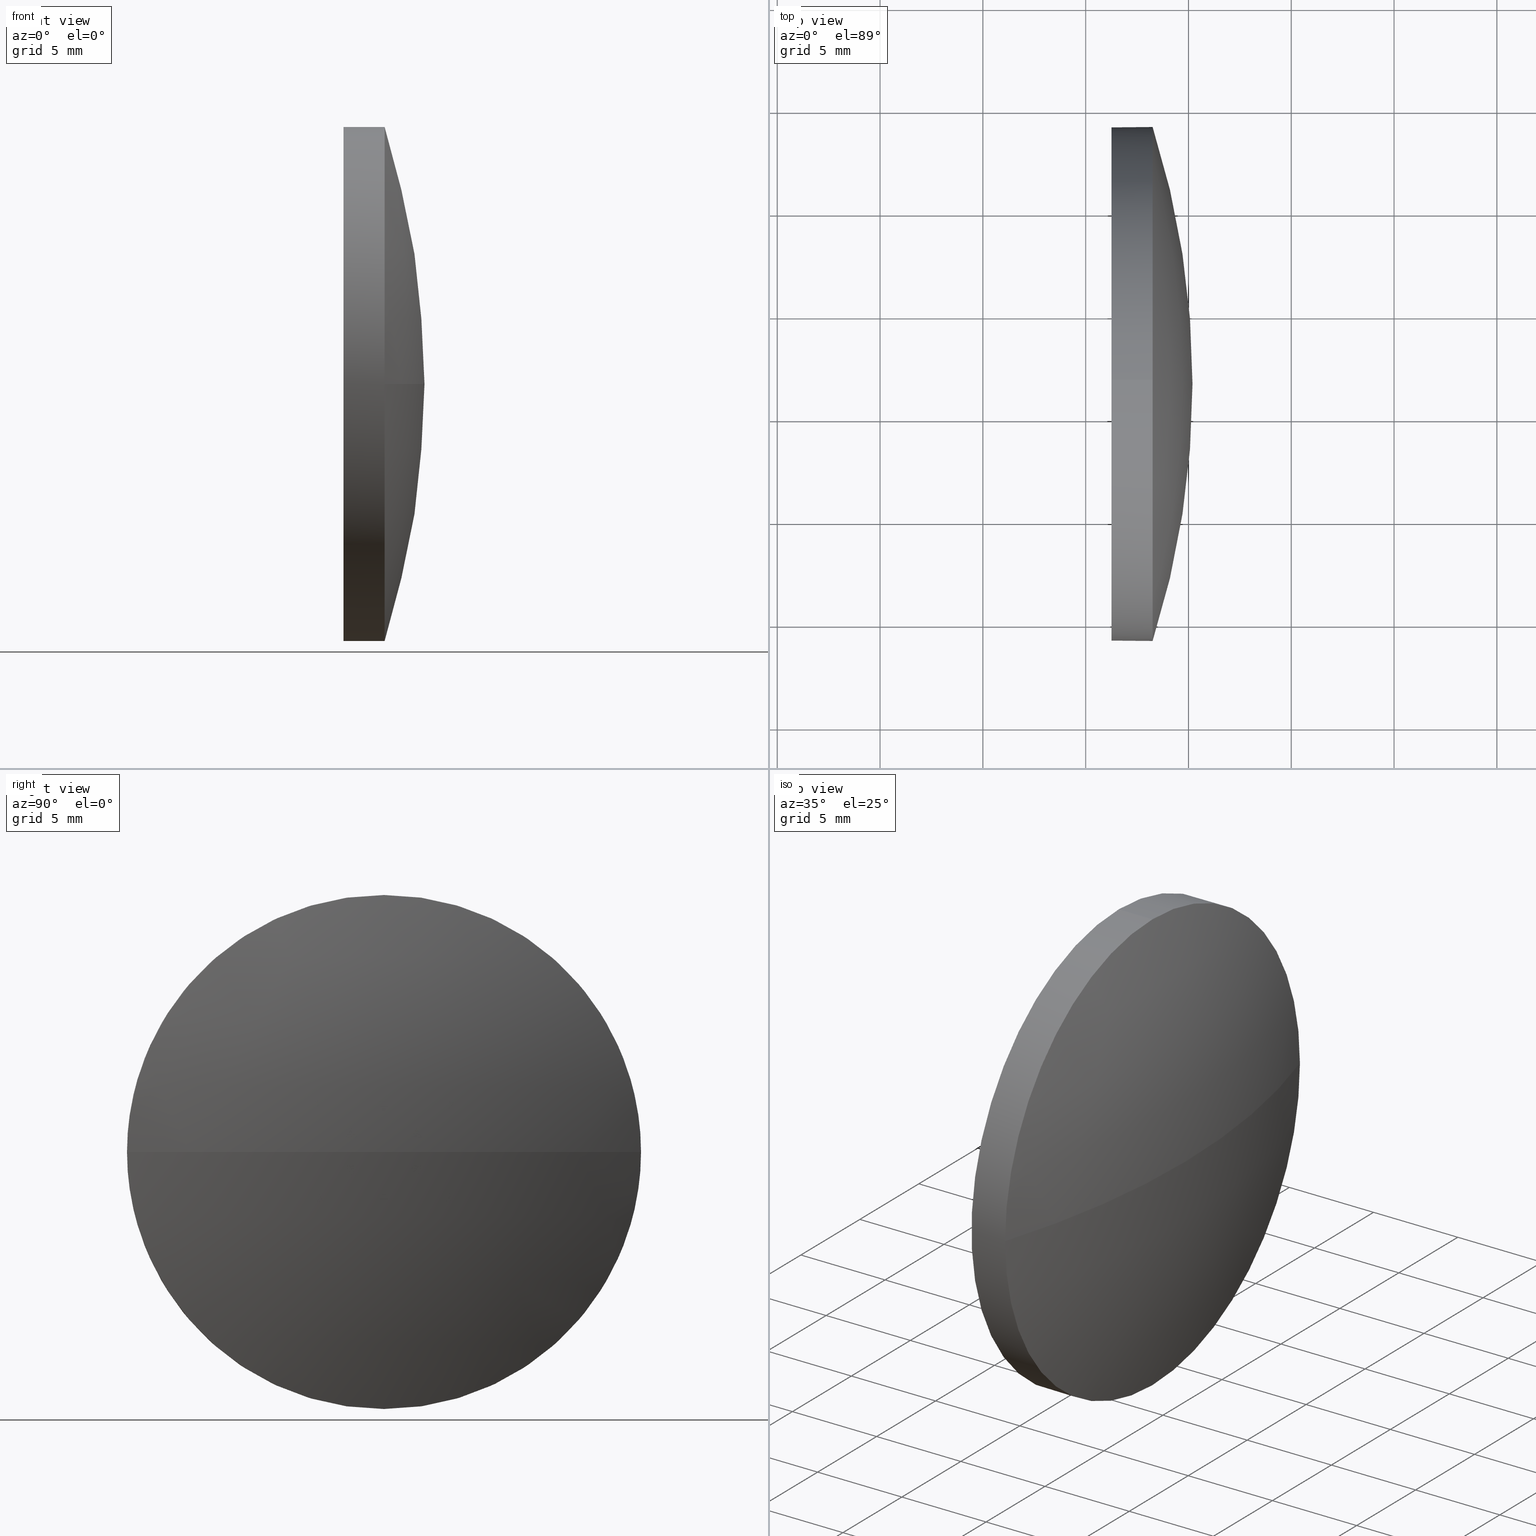
[diagram: canonical four-view strip — front | top / right | iso, engineering-drawing reading convention]
A machine part, canonical four-view strip (front | top / right | iso — engineering-drawing reading convention). The complete STEP part file that produces these views, byte-faithful:
ISO-10303-21;
HEADER;
FILE_DESCRIPTION (( 'STEP AP214' ),
    '1' );
FILE_NAME ('100129.STEP',
    '2019-05-14T09:21:58',
    ( '' ),
    ( '' ),
    'SwSTEP 2.0',
    'SolidWorks 2016',
    '' );
FILE_SCHEMA (( 'AUTOMOTIVE_DESIGN' ));
ENDSEC;

DATA;
#1 = PRODUCT ( '100129', '100129', '', ( #120 ) ) ;
#2 = LINE ( 'NONE', #151, #123 ) ;
#3 = ORIENTED_EDGE ( 'NONE', *, *, #97, .F. ) ;
#4 = LINE ( 'NONE', #117, #96 ) ;
#5 = EDGE_LOOP ( 'NONE', ( #61, #19, #116, #17 ) ) ;
#6 = ORIENTED_EDGE ( 'NONE', *, *, #22, .F. ) ;
#7 = ADVANCED_BREP_SHAPE_REPRESENTATION ( '100129', ( #119, #33 ), #14 ) ;
#8 =( NAMED_UNIT ( * ) PLANE_ANGLE_UNIT ( ) SI_UNIT ( $, .RADIAN. ) );
#9 = DIRECTION ( 'NONE',  ( 0.0000000000000000000, -1.000000000000000000, -1.224646799147353000E-016 ) ) ;
#10 = CARTESIAN_POINT ( 'NONE',  ( 848.2559013236141300, 251.6067305368113700, 0.0000000000000000000 ) ) ;
#11 = FACE_OUTER_BOUND ( 'NONE', #16, .T. ) ;
#12 = VERTEX_POINT ( 'NONE', #49 ) ;
#13 =( NAMED_UNIT ( * ) SI_UNIT ( $, .STERADIAN. ) SOLID_ANGLE_UNIT ( ) );
#14 =( GEOMETRIC_REPRESENTATION_CONTEXT ( 3 ) GLOBAL_UNCERTAINTY_ASSIGNED_CONTEXT ( ( #186 ) ) GLOBAL_UNIT_ASSIGNED_CONTEXT ( ( #26, #89, #13 ) ) REPRESENTATION_CONTEXT ( 'NONE', 'WORKASPACE' ) );
#15 = DIRECTION ( 'NONE',  ( 0.0000000000000000000, 0.0000000000000000000, -1.000000000000000000 ) ) ;
#16 = EDGE_LOOP ( 'NONE', ( #6, #70, #76, #54 ) ) ;
#17 = ORIENTED_EDGE ( 'NONE', *, *, #100, .F. ) ;
#18 = FACE_OUTER_BOUND ( 'NONE', #48, .T. ) ;
#19 = ORIENTED_EDGE ( 'NONE', *, *, #22, .T. ) ;
#20 = CARTESIAN_POINT ( 'NONE',  ( 846.2559013236141300, 251.6067305368113700, 12.50000000000001100 ) ) ;
#21 = COLOUR_RGB ( '',1.000000000000000000, 1.000000000000000000, 1.000000000000000000 ) ;
#22 = EDGE_CURVE ( 'NONE', #157, #30, #41, .T. ) ;
#23 = DIRECTION ( 'NONE',  ( -1.000000000000000000, -0.0000000000000000000, -0.0000000000000000000 ) ) ;
#24 = ORIENTED_EDGE ( 'NONE', *, *, #121, .T. ) ;
#25 = STYLED_ITEM ( 'NONE', ( #111 ), #7 ) ;
#26 =( LENGTH_UNIT ( ) NAMED_UNIT ( * ) SI_UNIT ( .MILLI., .METRE. ) );
#27 = FILL_AREA_STYLE_COLOUR ( '', #21 ) ;
#28 = APPLICATION_PROTOCOL_DEFINITION ( 'draft international standard', 'automotive_design', 1998, #44 ) ;
#29 = MECHANICAL_DESIGN_GEOMETRIC_PRESENTATION_REPRESENTATION (  '', ( #25 ), #184 ) ;
#30 = VERTEX_POINT ( 'NONE', #59 ) ;
#31 = CARTESIAN_POINT ( 'NONE',  ( 808.9552827669131100, 251.6067305368114300, 0.0000000000000000000 ) ) ;
#32 = EDGE_CURVE ( 'NONE', #52, #146, #124, .T. ) ;
#33 = AXIS2_PLACEMENT_3D ( 'NONE', #72, #103, #145 ) ;
#34 = CARTESIAN_POINT ( 'NONE',  ( 848.2559013236141300, 264.1067305368114300, 1.530808498934193100E-015 ) ) ;
#35 = FILL_AREA_STYLE_COLOUR ( '', #161 ) ;
#36 = CARTESIAN_POINT ( 'NONE',  ( 848.2559013236141300, 251.6067305368113700, 0.0000000000000000000 ) ) ;
#37 = UNCERTAINTY_MEASURE_WITH_UNIT (LENGTH_MEASURE( 1.000000000000000100E-005 ), #185, 'distance_accuracy_value', 'NONE');
#38 = EDGE_CURVE ( 'NONE', #30, #12, #51, .T. ) ;
#39 = DIRECTION ( 'NONE',  ( 0.0000000000000000000, 0.0000000000000000000, 1.000000000000000000 ) ) ;
#40 = CARTESIAN_POINT ( 'NONE',  ( 808.9552827669131100, 251.6067305368114300, 0.0000000000000000000 ) ) ;
#41 = CIRCLE ( 'NONE', #147, 41.24061855670113600 ) ;
#42 = ORIENTED_EDGE ( 'NONE', *, *, #38, .T. ) ;
#43 = ADVANCED_FACE ( 'NONE', ( #18 ), #140, .T. ) ;
#44 = APPLICATION_CONTEXT ( 'automotive_design' ) ;
#45 = EDGE_CURVE ( 'NONE', #12, #90, #87, .T. ) ;
#46 = DIRECTION ( 'NONE',  ( -1.000000000000000000, -0.0000000000000000000, -0.0000000000000000000 ) ) ;
#47 = PRESENTATION_STYLE_ASSIGNMENT (( #94 ) ) ;
#48 = EDGE_LOOP ( 'NONE', ( #109, #165, #134, #3, #91 ) ) ;
#49 = CARTESIAN_POINT ( 'NONE',  ( 848.2559013236141300, 251.6067305368113700, 12.50000000000001100 ) ) ;
#50 = AXIS2_PLACEMENT_3D ( 'NONE', #84, #65, #180 ) ;
#51 = CIRCLE ( 'NONE', #133, 12.50000000000001100 ) ;
#52 = VERTEX_POINT ( 'NONE', #132 ) ;
#53 = FILL_AREA_STYLE ('',( #35 ) ) ;
#54 = ORIENTED_EDGE ( 'NONE', *, *, #38, .F. ) ;
#55 =( NAMED_UNIT ( * ) PLANE_ANGLE_UNIT ( ) SI_UNIT ( $, .RADIAN. ) );
#56 = PRODUCT_DEFINITION_CONTEXT ( 'detailed design', #173, 'design' ) ;
#57 = SURFACE_STYLE_USAGE ( .BOTH. , #159 ) ;
#58 = AXIS2_PLACEMENT_3D ( 'NONE', #160, #46, #73 ) ;
#59 = CARTESIAN_POINT ( 'NONE',  ( 848.2559013236141300, 239.1067305368113700, 0.0000000000000000000 ) ) ;
#60 = ORIENTED_EDGE ( 'NONE', *, *, #97, .T. ) ;
#61 = ORIENTED_EDGE ( 'NONE', *, *, #174, .F. ) ;
#62 = AXIS2_PLACEMENT_3D ( 'NONE', #141, #130, #142 ) ;
#63 = CYLINDRICAL_SURFACE ( 'NONE', #86, 12.50000000000001100 ) ;
#64 = CARTESIAN_POINT ( 'NONE',  ( 848.2559013236141300, 251.6067305368113700, 0.0000000000000000000 ) ) ;
#65 = DIRECTION ( 'NONE',  ( -1.000000000000000000, -0.0000000000000000000, -0.0000000000000000000 ) ) ;
#66 =( NAMED_UNIT ( * ) SI_UNIT ( $, .STERADIAN. ) SOLID_ANGLE_UNIT ( ) );
#67 = AXIS2_PLACEMENT_3D ( 'NONE', #98, #82, #154 ) ;
#68 = AXIS2_PLACEMENT_3D ( 'NONE', #10, #23, #131 ) ;
#69 = DIRECTION ( 'NONE',  ( 0.0000000000000000000, -1.224646799147353200E-016, 1.000000000000000000 ) ) ;
#70 = ORIENTED_EDGE ( 'NONE', *, *, #174, .T. ) ;
#71 = ADVANCED_FACE ( 'NONE', ( #175 ), #169, .T. ) ;
#72 = CARTESIAN_POINT ( 'NONE',  ( 0.0000000000000000000, 0.0000000000000000000, 0.0000000000000000000 ) ) ;
#73 = DIRECTION ( 'NONE',  ( 0.0000000000000000000, 0.0000000000000000000, 1.000000000000000000 ) ) ;
#74 = AXIS2_PLACEMENT_3D ( 'NONE', #168, #85, #80 ) ;
#75 = CARTESIAN_POINT ( 'NONE',  ( 808.9552827669131100, 251.6067305368114300, 0.0000000000000000000 ) ) ;
#76 = ORIENTED_EDGE ( 'NONE', *, *, #45, .F. ) ;
#77 = AXIS2_PLACEMENT_3D ( 'NONE', #64, #143, #166 ) ;
#78 = PRODUCT_DEFINITION ( 'δ֪', '', #93, #56 ) ;
#79 = CIRCLE ( 'NONE', #101, 12.50000000000001100 ) ;
#80 = DIRECTION ( 'NONE',  ( 0.0000000000000000000, 0.0000000000000000000, -1.000000000000000000 ) ) ;
#81 = UNCERTAINTY_MEASURE_WITH_UNIT (LENGTH_MEASURE( 1.000000000000000100E-005 ), #114, 'distance_accuracy_value', 'NONE');
#82 = DIRECTION ( 'NONE',  ( -1.000000000000000000, -0.0000000000000000000, -0.0000000000000000000 ) ) ;
#83 = PLANE ( 'NONE',  #74 ) ;
#84 = CARTESIAN_POINT ( 'NONE',  ( 848.2559013236141300, 251.6067305368113700, 0.0000000000000000000 ) ) ;
#85 = DIRECTION ( 'NONE',  ( 1.000000000000000000, 0.0000000000000000000, 0.0000000000000000000 ) ) ;
#86 = AXIS2_PLACEMENT_3D ( 'NONE', #99, #127, #39 ) ;
#87 = CIRCLE ( 'NONE', #50, 12.50000000000001100 ) ;
#88 = VERTEX_POINT ( 'NONE', #183 ) ;
#89 =( NAMED_UNIT ( * ) PLANE_ANGLE_UNIT ( ) SI_UNIT ( $, .RADIAN. ) );
#90 = VERTEX_POINT ( 'NONE', #34 ) ;
#91 = ORIENTED_EDGE ( 'NONE', *, *, #45, .T. ) ;
#92 = DIRECTION ( 'NONE',  ( -1.000000000000000000, -0.0000000000000000000, -0.0000000000000000000 ) ) ;
#93 = PRODUCT_DEFINITION_FORMATION_WITH_SPECIFIED_SOURCE ( '�κ�', '', #1, .NOT_KNOWN. ) ;
#94 = SURFACE_STYLE_USAGE ( .BOTH. , #112 ) ;
#95 = DIRECTION ( 'NONE',  ( -1.000000000000000000, -0.0000000000000000000, -0.0000000000000000000 ) ) ;
#96 = VECTOR ( 'NONE', #171, 1000.000000000000000 ) ;
#97 = EDGE_CURVE ( 'NONE', #12, #146, #2, .T. ) ;
#98 = CARTESIAN_POINT ( 'NONE',  ( 843.8902854208531600, 251.6067305368113700, 0.0000000000000000000 ) ) ;
#99 = CARTESIAN_POINT ( 'NONE',  ( 843.8902854208531600, 251.6067305368113700, 0.0000000000000000000 ) ) ;
#100 = EDGE_CURVE ( 'NONE', #90, #88, #156, .T. ) ;
#101 = AXIS2_PLACEMENT_3D ( 'NONE', #113, #152, #153 ) ;
#102 = ORIENTED_EDGE ( 'NONE', *, *, #182, .F. ) ;
#103 = DIRECTION ( 'NONE',  ( 0.0000000000000000000, 0.0000000000000000000, 1.000000000000000000 ) ) ;
#104 = ADVANCED_FACE ( 'NONE', ( #11 ), #144, .T. ) ;
#105 = SURFACE_STYLE_FILL_AREA ( #118 ) ;
#106 = PRESENTATION_LAYER_ASSIGNMENT (  '', '', ( #25 ) ) ;
#107 = DIRECTION ( 'NONE',  ( -1.000000000000000000, 0.0000000000000000000, 0.0000000000000000000 ) ) ;
#108 = SURFACE_STYLE_FILL_AREA ( #53 ) ;
#109 = ORIENTED_EDGE ( 'NONE', *, *, #100, .T. ) ;
#110 = PRODUCT_RELATED_PRODUCT_CATEGORY ( 'part', '', ( #1 ) ) ;
#111 = PRESENTATION_STYLE_ASSIGNMENT (( #57 ) ) ;
#112 = SURFACE_SIDE_STYLE ('',( #108 ) ) ;
#113 = CARTESIAN_POINT ( 'NONE',  ( 846.2559013236141300, 251.6067305368113700, 0.0000000000000000000 ) ) ;
#114 =( LENGTH_UNIT ( ) NAMED_UNIT ( * ) SI_UNIT ( .MILLI., .METRE. ) );
#115 = APPLICATION_PROTOCOL_DEFINITION ( 'draft international standard', 'automotive_design', 1998, #173 ) ;
#116 = ORIENTED_EDGE ( 'NONE', *, *, #129, .F. ) ;
#117 = CARTESIAN_POINT ( 'NONE',  ( 843.8902854208531600, 251.6067305368113700, -12.50000000000001100 ) ) ;
#118 = FILL_AREA_STYLE ('',( #27 ) ) ;
#119 = MANIFOLD_SOLID_BREP ( '��ת2', #149 ) ;
#120 = PRODUCT_CONTEXT ( 'NONE', #44, 'mechanical' ) ;
#121 = EDGE_CURVE ( 'NONE', #146, #52, #79, .T. ) ;
#122 = AXIS2_PLACEMENT_3D ( 'NONE', #75, #69, #9 ) ;
#123 = VECTOR ( 'NONE', #92, 1000.000000000000000 ) ;
#124 = CIRCLE ( 'NONE', #58, 12.50000000000001100 ) ;
#125 = DIRECTION ( 'NONE',  ( 0.0000000000000000000, -1.000000000000000000, 0.0000000000000000000 ) ) ;
#126 = ORIENTED_EDGE ( 'NONE', *, *, #32, .F. ) ;
#127 = DIRECTION ( 'NONE',  ( -1.000000000000000000, -0.0000000000000000000, -0.0000000000000000000 ) ) ;
#128 = DIRECTION ( 'NONE',  ( 0.0000000000000000000, 0.0000000000000000000, 1.000000000000000000 ) ) ;
#129 = EDGE_CURVE ( 'NONE', #88, #30, #170, .T. ) ;
#130 = DIRECTION ( 'NONE',  ( 0.0000000000000000000, 0.0000000000000000000, 1.000000000000000000 ) ) ;
#131 = DIRECTION ( 'NONE',  ( 0.0000000000000000000, 0.0000000000000000000, 1.000000000000000000 ) ) ;
#132 = CARTESIAN_POINT ( 'NONE',  ( 846.2559013236141300, 251.6067305368113700, -12.50000000000001100 ) ) ;
#133 = AXIS2_PLACEMENT_3D ( 'NONE', #36, #95, #167 ) ;
#134 = ORIENTED_EDGE ( 'NONE', *, *, #121, .F. ) ;
#135 = ADVANCED_FACE ( 'NONE', ( #136 ), #63, .T. ) ;
#136 = FACE_OUTER_BOUND ( 'NONE', #176, .T. ) ;
#137 = PRESENTATION_LAYER_ASSIGNMENT (  '', '', ( #164 ) ) ;
#138 = AXIS2_PLACEMENT_3D ( 'NONE', #40, #128, #125 ) ;
#139 = MECHANICAL_DESIGN_GEOMETRIC_PRESENTATION_REPRESENTATION (  '', ( #164 ), #177 ) ;
#140 = CYLINDRICAL_SURFACE ( 'NONE', #67, 12.50000000000001100 ) ;
#141 = CARTESIAN_POINT ( 'NONE',  ( 808.9552827669131100, 251.6067305368114300, 0.0000000000000000000 ) ) ;
#142 = DIRECTION ( 'NONE',  ( 0.0000000000000000000, -1.000000000000000000, 0.0000000000000000000 ) ) ;
#143 = DIRECTION ( 'NONE',  ( -1.000000000000000000, -0.0000000000000000000, -0.0000000000000000000 ) ) ;
#144 = SPHERICAL_SURFACE ( 'NONE', #62, 41.24061855670110100 ) ;
#145 = DIRECTION ( 'NONE',  ( 1.000000000000000000, 0.0000000000000000000, 0.0000000000000000000 ) ) ;
#146 = VERTEX_POINT ( 'NONE', #20 ) ;
#147 = AXIS2_PLACEMENT_3D ( 'NONE', #31, #15, #107 ) ;
#148 = FACE_OUTER_BOUND ( 'NONE', #162, .T. ) ;
#149 = CLOSED_SHELL ( 'NONE', ( #43, #104, #71, #135, #172 ) ) ;
#150 = CIRCLE ( 'NONE', #122, 41.24061855670110800 ) ;
#151 = CARTESIAN_POINT ( 'NONE',  ( 843.8902854208531600, 251.6067305368113700, 12.50000000000001100 ) ) ;
#152 = DIRECTION ( 'NONE',  ( -1.000000000000000000, -0.0000000000000000000, -0.0000000000000000000 ) ) ;
#153 = DIRECTION ( 'NONE',  ( 0.0000000000000000000, 0.0000000000000000000, 1.000000000000000000 ) ) ;
#154 = DIRECTION ( 'NONE',  ( 0.0000000000000000000, 0.0000000000000000000, 1.000000000000000000 ) ) ;
#155 =( NAMED_UNIT ( * ) SI_UNIT ( $, .STERADIAN. ) SOLID_ANGLE_UNIT ( ) );
#156 = CIRCLE ( 'NONE', #77, 12.50000000000001100 ) ;
#157 = VERTEX_POINT ( 'NONE', #181 ) ;
#158 = SHAPE_DEFINITION_REPRESENTATION ( #163, #7 ) ;
#159 = SURFACE_SIDE_STYLE ('',( #105 ) ) ;
#160 = CARTESIAN_POINT ( 'NONE',  ( 846.2559013236141300, 251.6067305368113700, 0.0000000000000000000 ) ) ;
#161 = COLOUR_RGB ( '',1.000000000000000000, 1.000000000000000000, 1.000000000000000000 ) ;
#162 = EDGE_LOOP ( 'NONE', ( #24, #178 ) ) ;
#163 = PRODUCT_DEFINITION_SHAPE ( 'NONE', 'NONE',  #78 ) ;
#164 = STYLED_ITEM ( 'NONE', ( #47 ), #119 ) ;
#165 = ORIENTED_EDGE ( 'NONE', *, *, #182, .T. ) ;
#166 = DIRECTION ( 'NONE',  ( 0.0000000000000000000, 0.0000000000000000000, 1.000000000000000000 ) ) ;
#167 = DIRECTION ( 'NONE',  ( 0.0000000000000000000, 0.0000000000000000000, 1.000000000000000000 ) ) ;
#168 = CARTESIAN_POINT ( 'NONE',  ( 846.2559013236141300, 251.6067305368113700, 0.0000000000000000000 ) ) ;
#169 = SPHERICAL_SURFACE ( 'NONE', #138, 41.24061855670110100 ) ;
#170 = CIRCLE ( 'NONE', #68, 12.50000000000001100 ) ;
#171 = DIRECTION ( 'NONE',  ( -1.000000000000000000, -0.0000000000000000000, -0.0000000000000000000 ) ) ;
#172 = ADVANCED_FACE ( 'NONE', ( #148 ), #83, .F. ) ;
#173 = APPLICATION_CONTEXT ( 'automotive_design' ) ;
#174 = EDGE_CURVE ( 'NONE', #157, #90, #150, .T. ) ;
#175 = FACE_OUTER_BOUND ( 'NONE', #5, .T. ) ;
#176 = EDGE_LOOP ( 'NONE', ( #102, #179, #42, #60, #126 ) ) ;
#177 =( GEOMETRIC_REPRESENTATION_CONTEXT ( 3 ) GLOBAL_UNCERTAINTY_ASSIGNED_CONTEXT ( ( #81 ) ) GLOBAL_UNIT_ASSIGNED_CONTEXT ( ( #114, #8, #66 ) ) REPRESENTATION_CONTEXT ( 'NONE', 'WORKASPACE' ) );
#178 = ORIENTED_EDGE ( 'NONE', *, *, #32, .T. ) ;
#179 = ORIENTED_EDGE ( 'NONE', *, *, #129, .T. ) ;
#180 = DIRECTION ( 'NONE',  ( 0.0000000000000000000, 0.0000000000000000000, 1.000000000000000000 ) ) ;
#181 = CARTESIAN_POINT ( 'NONE',  ( 850.1959013236141800, 251.6067305368114300, 0.0000000000000000000 ) ) ;
#182 = EDGE_CURVE ( 'NONE', #88, #52, #4, .T. ) ;
#183 = CARTESIAN_POINT ( 'NONE',  ( 848.2559013236141300, 251.6067305368113700, -12.50000000000001100 ) ) ;
#184 =( GEOMETRIC_REPRESENTATION_CONTEXT ( 3 ) GLOBAL_UNCERTAINTY_ASSIGNED_CONTEXT ( ( #37 ) ) GLOBAL_UNIT_ASSIGNED_CONTEXT ( ( #185, #55, #155 ) ) REPRESENTATION_CONTEXT ( 'NONE', 'WORKASPACE' ) );
#185 =( LENGTH_UNIT ( ) NAMED_UNIT ( * ) SI_UNIT ( .MILLI., .METRE. ) );
#186 = UNCERTAINTY_MEASURE_WITH_UNIT (LENGTH_MEASURE( 1.000000000000000100E-005 ), #26, 'distance_accuracy_value', 'NONE');
ENDSEC;
END-ISO-10303-21;
